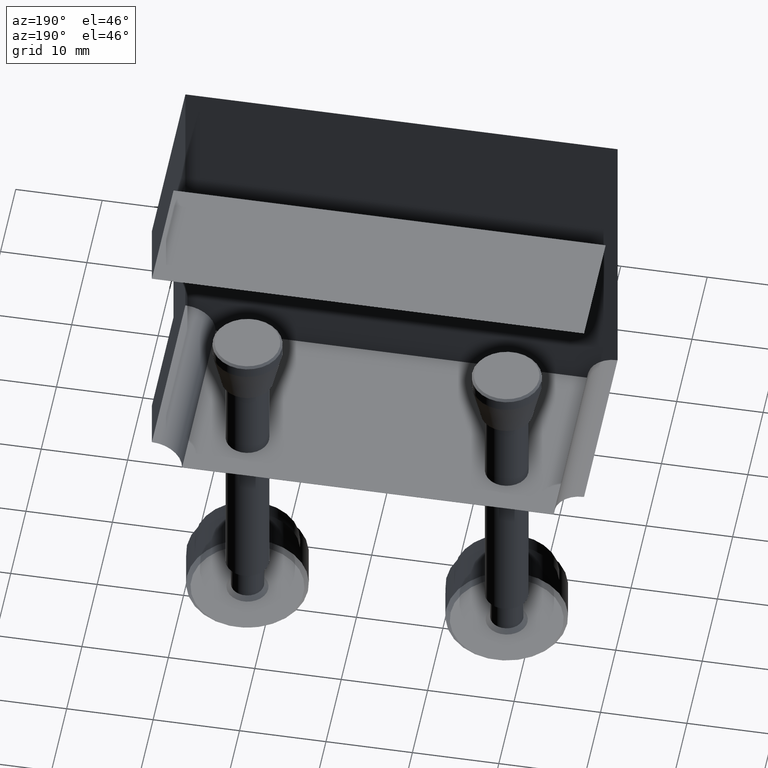
[diagram: clean part render]
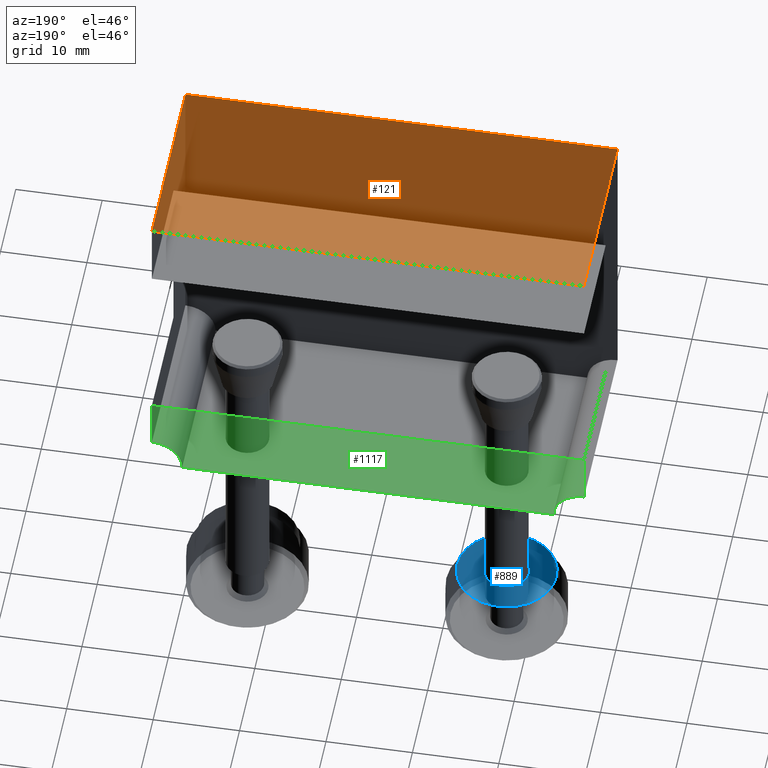
[diagram: same view with three faces highlighted in distinct colors, each labeled with its STEP entity id]
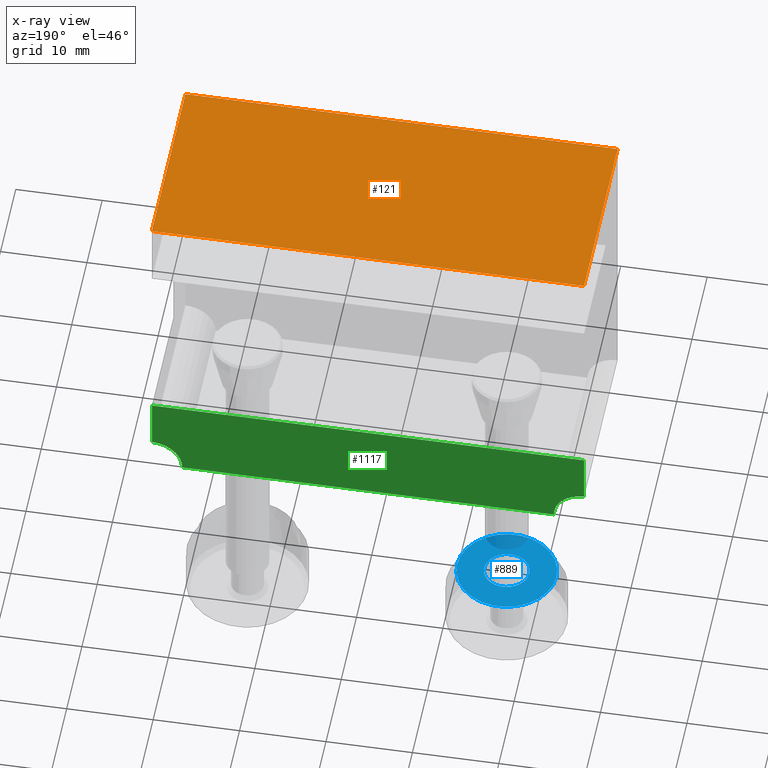
[diagram: x-ray of the same camera — body ghosted, the three highlighted faces saturated]
A machine part, auxiliary view with three faces highlighted in distinct colors.
The next image is the same camera in x-ray (body ghosted, the three faces saturated) — at least one of them is partly hidden behind the body in this view.
Their STEP definitions:

[orange] entity #121 — the highlighted planar face has unit normal (0, 0, -1).
#31 = DIRECTION ( 'NONE',  ( 0.000000000000000000, 0.000000000000000000, -1.000000000000000000 ) ) ;
#61 = EDGE_CURVE ( 'NONE', #674, #1249, #1242, .T. ) ;
#121 = ADVANCED_FACE ( 'NONE', ( #1339 ), #401, .T. ) ;
#167 = DIRECTION ( 'NONE',  ( -1.000000000000000000, 0.000000000000000000, -0.000000000000000000 ) ) ;
#180 = CARTESIAN_POINT ( 'NONE',  ( -7.136236490144629130, 12.54850150571975576, 47.74768636928211407 ) ) ;
#268 = DIRECTION ( 'NONE',  ( 1.000000000000000000, -0.000000000000000000, 0.000000000000000000 ) ) ;
#291 = CARTESIAN_POINT ( 'NONE',  ( -7.136236490144628242, 34.54850150571975576, 47.74768636928211407 ) ) ;
#309 = LINE ( 'NONE', #1024, #922 ) ;
#401 = PLANE ( 'NONE',  #949 ) ;
#415 = EDGE_CURVE ( 'NONE', #950, #726, #1215, .T. ) ;
#437 = ORIENTED_EDGE ( 'NONE', *, *, #952, .F. ) ;
#523 = LINE ( 'NONE', #1213, #1477 ) ;
#625 = DIRECTION ( 'NONE',  ( 0.000000000000000000, 1.000000000000000000, 0.000000000000000000 ) ) ;
#674 = VERTEX_POINT ( 'NONE', #1511 ) ;
#698 = ORIENTED_EDGE ( 'NONE', *, *, #61, .T. ) ;
#726 = VERTEX_POINT ( 'NONE', #1081 ) ;
#858 = EDGE_CURVE ( 'NONE', #950, #674, #523, .T. ) ;
#863 = VECTOR ( 'NONE', #1354, 1000.000000000000000 ) ;
#886 = CARTESIAN_POINT ( 'NONE',  ( -7.136236490144628242, 34.54850150571975576, 47.74768636928211407 ) ) ;
#922 = VECTOR ( 'NONE', #1277, 1000.000000000000000 ) ;
#949 = AXIS2_PLACEMENT_3D ( 'NONE', #886, #31, #167 ) ;
#950 = VERTEX_POINT ( 'NONE', #180 ) ;
#952 = EDGE_CURVE ( 'NONE', #726, #1249, #309, .T. ) ;
#974 = EDGE_LOOP ( 'NONE', ( #437, #1208, #1236, #698 ) ) ;
#994 = VECTOR ( 'NONE', #268, 1000.000000000000000 ) ;
#1013 = CARTESIAN_POINT ( 'NONE',  ( 42.86376350985538153, 34.54850150571975576, 47.74768636928211407 ) ) ;
#1024 = CARTESIAN_POINT ( 'NONE',  ( 42.86376350985538153, 34.54850150571975576, 47.74768636928211407 ) ) ;
#1081 = CARTESIAN_POINT ( 'NONE',  ( 42.86376350985538153, 12.54850150571975576, 47.74768636928211407 ) ) ;
#1208 = ORIENTED_EDGE ( 'NONE', *, *, #415, .F. ) ;
#1213 = CARTESIAN_POINT ( 'NONE',  ( -7.136236490144628242, 34.54850150571975576, 47.74768636928211407 ) ) ;
#1215 = LINE ( 'NONE', #1367, #863 ) ;
#1236 = ORIENTED_EDGE ( 'NONE', *, *, #858, .T. ) ;
#1242 = LINE ( 'NONE', #291, #994 ) ;
#1249 = VERTEX_POINT ( 'NONE', #1013 ) ;
#1277 = DIRECTION ( 'NONE',  ( 0.000000000000000000, 1.000000000000000000, -0.000000000000000000 ) ) ;
#1339 = FACE_OUTER_BOUND ( 'NONE', #974, .T. ) ;
#1354 = DIRECTION ( 'NONE',  ( 1.000000000000000000, 0.000000000000000000, -0.000000000000000000 ) ) ;
#1367 = CARTESIAN_POINT ( 'NONE',  ( 17.86376350985538153, 12.54850150571975753, 47.74768636928211407 ) ) ;
#1477 = VECTOR ( 'NONE', #625, 1000.000000000000000 ) ;
#1511 = CARTESIAN_POINT ( 'NONE',  ( -7.136236490144627354, 34.54850150571975576, 47.74768636928211407 ) ) ;

[blue] entity #889 — the highlighted planar face has unit normal (0, -0, 1).
#19 = PLANE ( 'NONE',  #597 ) ;
#40 = EDGE_LOOP ( 'NONE', ( #1212 ) ) ;
#372 = AXIS2_PLACEMENT_3D ( 'NONE', #874, #754, #486 ) ;
#396 = EDGE_CURVE ( 'NONE', #1050, #1050, #984, .T. ) ;
#486 = DIRECTION ( 'NONE',  ( 1.000000000000000000, 0.000000000000000000, -3.336006684531293218E-16 ) ) ;
#488 = DIRECTION ( 'NONE',  ( 1.759239726411918598E-16, -1.302529250467198802E-16, 1.000000000000000000 ) ) ;
#499 = DIRECTION ( 'NONE',  ( 1.000000000000000000, 0.000000000000000000, -1.759239726411918598E-16 ) ) ;
#512 = EDGE_LOOP ( 'NONE', ( #1084 ) ) ;
#539 = CARTESIAN_POINT ( 'NONE',  ( 5.463763509886159220, 28.54850150571979484, -6.852313630702156821 ) ) ;
#597 = AXIS2_PLACEMENT_3D ( 'NONE', #1467, #488, #499 ) ;
#754 = DIRECTION ( 'NONE',  ( -2.005465158376990976E-16, 1.242006359949370222E-16, -1.000000000000000000 ) ) ;
#874 = CARTESIAN_POINT ( 'NONE',  ( 2.863763509855381972, 28.54850150571979484, -6.852313630702155933 ) ) ;
#889 = ADVANCED_FACE ( 'NONE', ( #990, #1088 ), #19, .F. ) ;
#916 = VERTEX_POINT ( 'NONE', #539 ) ;
#984 = CIRCLE ( 'NONE', #1418, 5.749999999976971310 ) ;
#990 = FACE_BOUND ( 'NONE', #40, .T. ) ;
#1042 = CARTESIAN_POINT ( 'NONE',  ( -2.886236490121589338, 28.54850150571979484, -6.852313630758998464 ) ) ;
#1050 = VERTEX_POINT ( 'NONE', #1042 ) ;
#1084 = ORIENTED_EDGE ( 'NONE', *, *, #396, .T. ) ;
#1088 = FACE_OUTER_BOUND ( 'NONE', #512, .T. ) ;
#1104 = EDGE_CURVE ( 'NONE', #916, #916, #1327, .T. ) ;
#1207 = DIRECTION ( 'NONE',  ( -1.000000000000000000, 0.000000000000000000, 3.016910393015225249E-16 ) ) ;
#1212 = ORIENTED_EDGE ( 'NONE', *, *, #1104, .F. ) ;
#1327 = CIRCLE ( 'NONE', #372, 2.600000000030777247 ) ;
#1328 = DIRECTION ( 'NONE',  ( -2.607104705886359422E-16, 1.614608267929965912E-16, -1.000000000000000000 ) ) ;
#1418 = AXIS2_PLACEMENT_3D ( 'NONE', #1445, #1328, #1207 ) ;
#1445 = CARTESIAN_POINT ( 'NONE',  ( 2.863763509855381972, 28.54850150571979484, -6.852313630759000240 ) ) ;
#1467 = CARTESIAN_POINT ( 'NONE',  ( 2.863763509855382416, 28.54850150571979484, -6.852313630717886461 ) ) ;

[green] entity #1117 — the highlighted planar face has unit normal (0, 1, 0).
#35 = CARTESIAN_POINT ( 'NONE',  ( -3.636236490144630906, 34.54850150571975576, 9.647686369282110874 ) ) ;
#53 = CARTESIAN_POINT ( 'NONE',  ( -7.136236490144630018, 34.54850150571975576, 19.14768636928211620 ) ) ;
#128 = VERTEX_POINT ( 'NONE', #620 ) ;
#139 = DIRECTION ( 'NONE',  ( 0.000000000000000000, -0.000000000000000000, 1.000000000000000000 ) ) ;
#154 = VERTEX_POINT ( 'NONE', #53 ) ;
#200 = CARTESIAN_POINT ( 'NONE',  ( -7.136236490144630018, 34.54850150571975576, 9.647686369282110874 ) ) ;
#205 = ORIENTED_EDGE ( 'NONE', *, *, #290, .F. ) ;
#232 = DIRECTION ( 'NONE',  ( -0.000000000000000000, -1.000000000000000000, -0.000000000000000000 ) ) ;
#290 = EDGE_CURVE ( 'NONE', #128, #1274, #464, .T. ) ;
#321 = VECTOR ( 'NONE', #450, 1000.000000000000000 ) ;
#393 = ORIENTED_EDGE ( 'NONE', *, *, #960, .F. ) ;
#394 = CARTESIAN_POINT ( 'NONE',  ( 17.86376350985538153, 34.54850150571975576, 28.69768636928211336 ) ) ;
#444 = AXIS2_PLACEMENT_3D ( 'NONE', #937, #232, #473 ) ;
#450 = DIRECTION ( 'NONE',  ( 1.000000000000000000, 0.000000000000000000, -0.000000000000000000 ) ) ;
#464 = CIRCLE ( 'NONE', #1015, 3.499999999999999556 ) ;
#473 = DIRECTION ( 'NONE',  ( 0.000000000000000000, 0.000000000000000000, 1.000000000000000000 ) ) ;
#480 = ORIENTED_EDGE ( 'NONE', *, *, #1094, .F. ) ;
#489 = EDGE_CURVE ( 'NONE', #1274, #839, #501, .T. ) ;
#498 = ORIENTED_EDGE ( 'NONE', *, *, #767, .F. ) ;
#501 = LINE ( 'NONE', #1483, #826 ) ;
#510 = CARTESIAN_POINT ( 'NONE',  ( -7.136236490144630018, 34.54850150571975576, 13.14768636928211087 ) ) ;
#590 = DIRECTION ( 'NONE',  ( -0.000000000000000000, -1.000000000000000000, -0.000000000000000000 ) ) ;
#620 = CARTESIAN_POINT ( 'NONE',  ( 42.86376350985537442, 34.54850150571975576, 13.14768636928211087 ) ) ;
#644 = EDGE_LOOP ( 'NONE', ( #498, #393, #480, #1157, #205, #1071 ) ) ;
#742 = VERTEX_POINT ( 'NONE', #1540 ) ;
#767 = EDGE_CURVE ( 'NONE', #154, #742, #961, .T. ) ;
#826 = VECTOR ( 'NONE', #877, 1000.000000000000000 ) ;
#839 = VERTEX_POINT ( 'NONE', #35 ) ;
#841 = DIRECTION ( 'NONE',  ( 0.000000000000000000, 1.000000000000000000, 0.000000000000000000 ) ) ;
#877 = DIRECTION ( 'NONE',  ( -1.000000000000000000, -0.000000000000000000, 0.000000000000000000 ) ) ;
#937 = CARTESIAN_POINT ( 'NONE',  ( -7.136236490144630018, 34.54850150571975576, 9.647686369282110874 ) ) ;
#951 = LINE ( 'NONE', #1286, #1436 ) ;
#959 = FACE_OUTER_BOUND ( 'NONE', #644, .T. ) ;
#960 = EDGE_CURVE ( 'NONE', #1466, #154, #1383, .T. ) ;
#961 = LINE ( 'NONE', #1167, #321 ) ;
#1008 = DIRECTION ( 'NONE',  ( 9.106159978880878627E-17, -0.000000000000000000, 1.000000000000000000 ) ) ;
#1015 = AXIS2_PLACEMENT_3D ( 'NONE', #1083, #590, #1433 ) ;
#1022 = VECTOR ( 'NONE', #1008, 1000.000000000000000 ) ;
#1071 = ORIENTED_EDGE ( 'NONE', *, *, #1351, .F. ) ;
#1083 = CARTESIAN_POINT ( 'NONE',  ( 42.86376350985537442, 34.54850150571975576, 9.647686369282110874 ) ) ;
#1094 = EDGE_CURVE ( 'NONE', #839, #1466, #1125, .T. ) ;
#1117 = ADVANCED_FACE ( 'NONE', ( #959 ), #1442, .F. ) ;
#1125 = CIRCLE ( 'NONE', #444, 3.499999999999999556 ) ;
#1157 = ORIENTED_EDGE ( 'NONE', *, *, #489, .F. ) ;
#1165 = DIRECTION ( 'NONE',  ( -9.106159978880878627E-17, -0.000000000000000000, -1.000000000000000000 ) ) ;
#1167 = CARTESIAN_POINT ( 'NONE',  ( 17.86376350985538153, 34.54850150571975576, 19.14768636928211620 ) ) ;
#1250 = AXIS2_PLACEMENT_3D ( 'NONE', #394, #841, #139 ) ;
#1274 = VERTEX_POINT ( 'NONE', #1275 ) ;
#1275 = CARTESIAN_POINT ( 'NONE',  ( 39.36376350985537442, 34.54850150571975576, 9.647686369282110874 ) ) ;
#1286 = CARTESIAN_POINT ( 'NONE',  ( 42.86376350985537442, 34.54850150571975576, 9.647686369282110874 ) ) ;
#1351 = EDGE_CURVE ( 'NONE', #742, #128, #951, .T. ) ;
#1383 = LINE ( 'NONE', #200, #1022 ) ;
#1433 = DIRECTION ( 'NONE',  ( 0.000000000000000000, 0.000000000000000000, 1.000000000000000000 ) ) ;
#1436 = VECTOR ( 'NONE', #1165, 1000.000000000000000 ) ;
#1442 = PLANE ( 'NONE',  #1250 ) ;
#1466 = VERTEX_POINT ( 'NONE', #510 ) ;
#1483 = CARTESIAN_POINT ( 'NONE',  ( -7.136236490144630018, 34.54850150571975576, 9.647686369282110874 ) ) ;
#1540 = CARTESIAN_POINT ( 'NONE',  ( 42.86376350985537442, 34.54850150571975576, 19.14768636928211620 ) ) ;